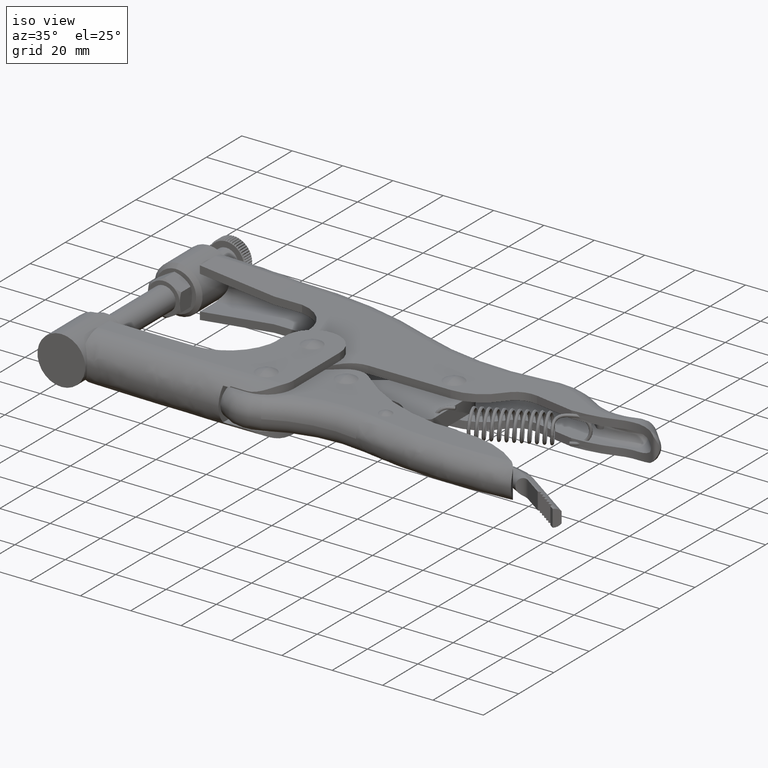
[diagram: clean part render]
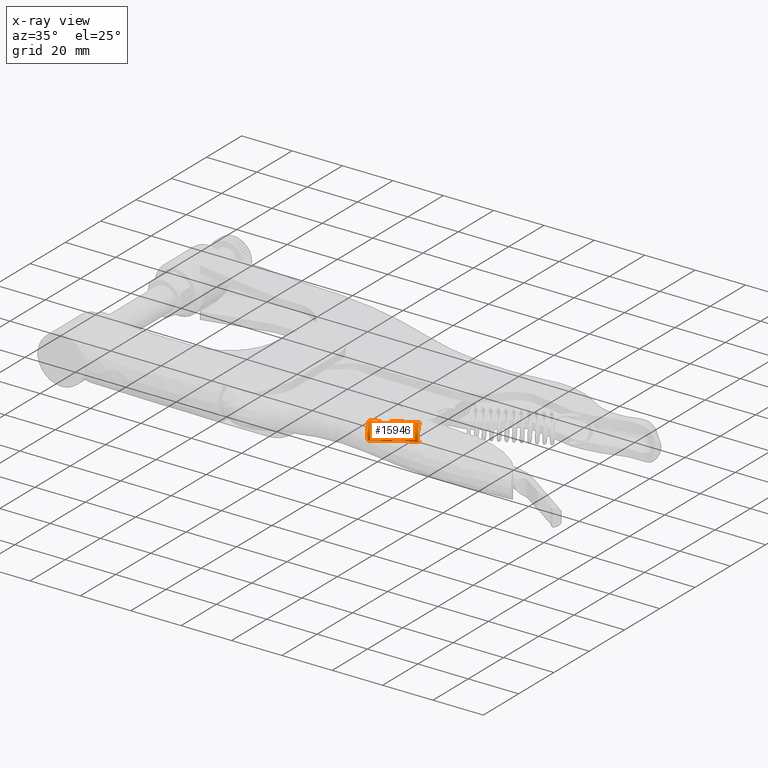
[diagram: x-ray — body ghosted, one internal face saturated and labeled with its STEP entity id]
A machine part, iso view, then the same camera in x-ray: the body is ghosted and one INTERNAL B-rep face — a face not visible from any outside direction — is saturated and labeled: STEP entity #15946.
In plain terms, the highlighted face is a freeform B-spline surface patch.
Its self-contained STEP definition (entity closure, byte-faithful):
#2 = VECTOR ( 'NONE', #17696, 1000.000000000000000 ) ;
#391 = ORIENTED_EDGE ( 'NONE', *, *, #11643, .F. ) ;
#448 = VERTEX_POINT ( 'NONE', #28071 ) ;
#676 = CARTESIAN_POINT ( 'NONE',  ( 44.06726535546203400, -32.78890927556452100, -3.399999999999998100 ) ) ;
#895 = VERTEX_POINT ( 'NONE', #27309 ) ;
#990 = CARTESIAN_POINT ( 'NONE',  ( 45.61718484976257300, -25.69403677163135700, 3.098255744760664700 ) ) ;
#1134 = CARTESIAN_POINT ( 'NONE',  ( 55.57010816931430200, -18.33612750716227100, 3.399999999999998600 ) ) ;
#1231 = CARTESIAN_POINT ( 'NONE',  ( 45.61791360163985600, -25.69428381229216300, -3.097978085943051200 ) ) ;
#1258 = ORIENTED_EDGE ( 'NONE', *, *, #9082, .T. ) ;
#1335 = CARTESIAN_POINT ( 'NONE',  ( 47.64531181743538500, -24.64726094941002200, -3.047005688041712900 ) ) ;
#1570 = CARTESIAN_POINT ( 'NONE',  ( 47.66681671758975400, -24.08746019915241700, -3.239200085711781500 ) ) ;
#1610 = VERTEX_POINT ( 'NONE', #17940 ) ;
#2367 = CARTESIAN_POINT ( 'NONE',  ( 47.17917156307391500, -23.17473498567709500, 3.399999999999999000 ) ) ;
#3047 = CARTESIAN_POINT ( 'NONE',  ( 44.06726535546189900, -32.78890927556423700, 3.400000000000623900 ) ) ;
#3247 = CARTESIAN_POINT ( 'NONE',  ( 47.64558947808738100, -24.64617610584436500, 3.047412845196806300 ) ) ;
#3348 = CARTESIAN_POINT ( 'NONE',  ( 45.15840697478898100, -25.40692877180829300, 3.275681344832299200 ) ) ;
#3607 = CARTESIAN_POINT ( 'NONE',  ( 46.14296472629641200, -25.80180386569308500, -2.907459857115975800 ) ) ;
#3707 = CARTESIAN_POINT ( 'NONE',  ( 47.67714990750867800, -24.29095745534076300, -3.173433522800128700 ) ) ;
#3953 = CARTESIAN_POINT ( 'NONE',  ( 47.59338504615602300, -23.78562611743962000, -3.320451736665198900 ) ) ;
#4299 = VECTOR ( 'NONE', #7828, 1000.000000000000000 ) ;
#4366 = VERTEX_POINT ( 'NONE', #24058 ) ;
#4541 = CARTESIAN_POINT ( 'NONE',  ( 55.57010816931430200, -18.33612750716227100, -3.400000000000000400 ) ) ;
#4740 = CARTESIAN_POINT ( 'NONE',  ( 47.45530232782724800, -23.49877472608380600, 3.375600863510891200 ) ) ;
#5408 = CARTESIAN_POINT ( 'NONE',  ( 41.19671371462941800, -26.62450068452142900, 3.399999999999999900 ) ) ;
#5593 = B_SPLINE_CURVE_WITH_KNOTS ( 'NONE', 3,
 ( #2367, #30731, #14160, #4740, #21309, #7107, #23680, #9481 ),
 .UNSPECIFIED., .F., .F.,
 ( 4, 2, 2, 4 ),
 ( 0.008275824479822757200, 0.008594184501867472400, 0.008912544523912189300, 0.009549264568001611000 ),
 .UNSPECIFIED. ) ;
#5613 = CARTESIAN_POINT ( 'NONE',  ( 47.42861461961787500, -25.13876443298906700, 2.864510002804273400 ) ) ;
#5616 = EDGE_CURVE ( 'NONE', #17488, #9018, #25920, .T. ) ;
#5721 = CARTESIAN_POINT ( 'NONE',  ( 44.82216106768810700, -24.96144776679170000, 3.385033806121104500 ) ) ;
#5850 = CARTESIAN_POINT ( 'NONE',  ( 55.57010816931430200, -18.33612750716227100, 3.399999999999998600 ) ) ;
#5861 = CARTESIAN_POINT ( 'NONE',  ( 44.70913606373452600, -24.59907326877365500, -3.399999999999999500 ) ) ;
#5957 = CARTESIAN_POINT ( 'NONE',  ( 46.50797038692594000, -25.75699916181383400, -2.813646573213274000 ) ) ;
#6072 = EDGE_CURVE ( 'NONE', #9018, #23733, #5593, .T. ) ;
#6300 = CARTESIAN_POINT ( 'NONE',  ( 47.45686843786288000, -23.50123268886106200, -3.375253990886856000 ) ) ;
#6709 = CARTESIAN_POINT ( 'NONE',  ( 41.19671371462954600, -26.62450068452171700, 2.802875531023441700E-016 ) ) ;
#6933 = ORIENTED_EDGE ( 'NONE', *, *, #30527, .T. ) ;
#7107 = CARTESIAN_POINT ( 'NONE',  ( 47.63554985191826300, -23.88143281168854400, 3.300715945900514600 ) ) ;
#7828 = DIRECTION ( 'NONE',  ( -0.8662891316051880600, -0.4995429315511623600, 6.564292506687230200E-017 ) ) ;
#7956 = ORIENTED_EDGE ( 'NONE', *, *, #25918, .T. ) ;
#7995 = CARTESIAN_POINT ( 'NONE',  ( 47.17611332930567200, -25.41387102135563600, 2.788341233521864900 ) ) ;
#8005 = VECTOR ( 'NONE', #21204, 1000.000000000000000 ) ;
#8089 = CARTESIAN_POINT ( 'NONE',  ( 44.70913606373452600, -24.59907326877366200, 3.399999999999999500 ) ) ;
#8237 = CARTESIAN_POINT ( 'NONE',  ( 44.74779553472882300, -24.78326582280168100, -3.399999999999998600 ) ) ;
#8267 = VERTEX_POINT ( 'NONE', #23823 ) ;
#8327 =( BOUNDED_SURFACE ( )  B_SPLINE_SURFACE ( 3, 1, ( 
 ( #21873, #10059 ),
 ( #14834, #676 ),
 ( #17229, #3047 ),
 ( #19605, #5408 ) ),
 .UNSPECIFIED., .F., .F., .F. ) 
 B_SPLINE_SURFACE_WITH_KNOTS ( ( 4, 4 ),
 ( 2, 2 ),
 ( 0.0000000000000000000, 1.000000000000000000 ),
 ( 0.0000000000000000000, 1.000000000000000000 ),
 .UNSPECIFIED. ) 
 GEOMETRIC_REPRESENTATION_ITEM ( )  RATIONAL_B_SPLINE_SURFACE ( (
 ( 1.000000000000000000, 1.000000000000000000),
 ( 0.3333333333333027300, 0.3333333333333027300),
 ( 0.3333333333333027300, 0.3333333333333027300),
 ( 1.000000000000000000, 1.000000000000000000) ) ) 
 REPRESENTATION_ITEM ( '' )  SURFACE ( )  );
#8347 = CARTESIAN_POINT ( 'NONE',  ( 46.77658012352093700, -25.66920139032565400, -2.773039902989876500 ) ) ;
#8685 = CARTESIAN_POINT ( 'NONE',  ( 47.25961792498749500, -23.24695087358605900, -3.399999999999999500 ) ) ;
#9018 = VERTEX_POINT ( 'NONE', #13969 ) ;
#9070 = EDGE_CURVE ( 'NONE', #8267, #895, #14330, .T. ) ;
#9082 = EDGE_CURVE ( 'NONE', #448, #895, #23446, .T. ) ;
#9094 = DIRECTION ( 'NONE',  ( 0.0000000000000000000, 0.0000000000000000000, -1.000000000000000000 ) ) ;
#9398 = ORIENTED_EDGE ( 'NONE', *, *, #15927, .T. ) ;
#9481 = CARTESIAN_POINT ( 'NONE',  ( 47.67714990750867800, -24.29095745534074500, 3.173433522800154400 ) ) ;
#9510 = ORIENTED_EDGE ( 'NONE', *, *, #18217, .T. ) ;
#10059 = CARTESIAN_POINT ( 'NONE',  ( 41.19671371462955300, -26.62450068452171300, -3.399999999999999000 ) ) ;
#10369 = CARTESIAN_POINT ( 'NONE',  ( 46.94644208759918800, -25.58212402886102400, 2.766307430147606700 ) ) ;
#10625 = CARTESIAN_POINT ( 'NONE',  ( 44.97689005307631000, -25.19543405000515400, -3.338076273092112500 ) ) ;
#10634 = LINE ( 'NONE', #28821, #23264 ) ;
#10719 = CARTESIAN_POINT ( 'NONE',  ( 47.18086231402322300, -25.42092711426720100, -2.783254127420584200 ) ) ;
#11643 = EDGE_CURVE ( 'NONE', #27974, #4366, #17631, .T. ) ;
#11951 = FACE_OUTER_BOUND ( 'NONE', #25511, .T. ) ;
#12019 = ORIENTED_EDGE ( 'NONE', *, *, #18801, .F. ) ;
#12225 = DIRECTION ( 'NONE',  ( -0.8662891316051880600, -0.4995429315511623600, 6.564292506687230200E-017 ) ) ;
#12454 = DIRECTION ( 'NONE',  ( -0.9065306751532712400, -0.4221399471812093400, 6.280311641998685200E-017 ) ) ;
#12767 = CARTESIAN_POINT ( 'NONE',  ( 46.51005489514999900, -25.76499034731699900, 2.809510908957205000 ) ) ;
#12788 = ORIENTED_EDGE ( 'NONE', *, *, #9070, .F. ) ;
#13010 = CARTESIAN_POINT ( 'NONE',  ( 45.16373533667611200, -25.40064649906160500, -3.273049792243951700 ) ) ;
#13115 = CARTESIAN_POINT ( 'NONE',  ( 47.41898289229877200, -25.13717014611388100, -2.868027958598547300 ) ) ;
#13237 = B_SPLINE_CURVE_WITH_KNOTS ( 'NONE', 3,
 ( #5861, #8237, #24844, #10625, #27224, #13010, #29595, #15395, #1231, #17787, #3607, #20171, #5957, #22547, #8347, #24941, #10719, #27324, #13115, #29683, #15492, #1335, #17891, #3707 ),
 .UNSPECIFIED., .F., .F.,
 ( 4, 2, 2, 2, 2, 2, 2, 2, 2, 2, 2, 4 ),
 ( 0.003762194174914350300, 0.004327245422867221700, 0.004609771046843656900, 0.004892296670820092200, 0.005457347918772968700, 0.006022399166725846100, 0.006304924790702295300, 0.006587450414678744400, 0.007152501662631637400, 0.007435027286608083100, 0.007717552910584530400, 0.008282604158537414800 ),
 .UNSPECIFIED. ) ;
#13969 = CARTESIAN_POINT ( 'NONE',  ( 47.17917156307391500, -23.17473498567709500, 3.399999999999999000 ) ) ;
#14160 = CARTESIAN_POINT ( 'NONE',  ( 47.33124843764960600, -23.32696385119925300, 3.395255838776981300 ) ) ;
#14330 = LINE ( 'NONE', #4541, #8005 ) ;
#14834 = CARTESIAN_POINT ( 'NONE',  ( 58.44065981014678400, -24.50053609820507500, -3.399999999999999500 ) ) ;
#15045 = CARTESIAN_POINT ( 'NONE',  ( 47.67714990750867800, -24.29095745534074500, 3.173433522800154400 ) ) ;
#15138 = CARTESIAN_POINT ( 'NONE',  ( 45.96390638930045500, -25.78652411572112900, 2.969627270081825400 ) ) ;
#15323 = CARTESIAN_POINT ( 'NONE',  ( 47.67714990750867800, -24.29095745534074500, 3.173433522800154400 ) ) ;
#15395 = CARTESIAN_POINT ( 'NONE',  ( 45.45522365286281300, -25.61835299867969300, -3.162592587867136800 ) ) ;
#15492 = CARTESIAN_POINT ( 'NONE',  ( 47.55072756967860700, -24.90038119905214500, -2.952718726306501600 ) ) ;
#15927 = EDGE_CURVE ( 'NONE', #8267, #17488, #24563, .T. ) ;
#15946 = ADVANCED_FACE ( 'NONE', ( #11951 ), #8327, .T. ) ;
#17229 = CARTESIAN_POINT ( 'NONE',  ( 58.44065981014665600, -24.50053609820479700, 3.400000000000622500 ) ) ;
#17488 = VERTEX_POINT ( 'NONE', #5850 ) ;
#17533 = CARTESIAN_POINT ( 'NONE',  ( 45.45535068460840500, -25.61844946057663800, 3.162544530426271800 ) ) ;
#17540 = ORIENTED_EDGE ( 'NONE', *, *, #5616, .T. ) ;
#17631 = LINE ( 'NONE', #26807, #4299 ) ;
#17696 = DIRECTION ( 'NONE',  ( -0.8662891316051880600, -0.4995429315511623600, 6.564292506687230200E-017 ) ) ;
#17787 = CARTESIAN_POINT ( 'NONE',  ( 45.96400202221021700, -25.78649685265167700, -2.969599111958819200 ) ) ;
#17891 = CARTESIAN_POINT ( 'NONE',  ( 47.67714990750867800, -24.47184832483984700, -3.112941257993788700 ) ) ;
#17940 = CARTESIAN_POINT ( 'NONE',  ( 41.19671371462954600, -26.62450068452171700, 3.399999999999999900 ) ) ;
#18130 = CARTESIAN_POINT ( 'NONE',  ( 47.62525588062546700, -23.88659693679729300, -3.295476482601005200 ) ) ;
#18217 = EDGE_CURVE ( 'NONE', #23733, #21332, #18252, .T. ) ;
#18252 = B_SPLINE_CURVE_WITH_KNOTS ( 'NONE', 3,
 ( #15045, #29244, #3247, #19818, #5613, #22189, #7995, #24587, #10369, #26968, #12767, #29349, #15138, #990, #17533, #3348, #19917, #5721, #22296, #8089 ),
 .UNSPECIFIED., .F., .F.,
 ( 4, 2, 2, 2, 2, 2, 2, 2, 2, 4 ),
 ( 0.0000000000000000000, 0.0005651028221361338500, 0.001130205644272267700, 0.001412757055340337900, 0.001695308466408408600, 0.002260411288544567900, 0.002825514110680727100, 0.003390616932816887000, 0.003955719754953046200, 0.004520822577089205300 ),
 .UNSPECIFIED. ) ;
#18801 = EDGE_CURVE ( 'NONE', #4366, #1610, #30079, .T. ) ;
#19605 = CARTESIAN_POINT ( 'NONE',  ( 55.57010816931417500, -18.33612750716198600, 3.399999999999998600 ) ) ;
#19818 = CARTESIAN_POINT ( 'NONE',  ( 47.51961622248470000, -24.98397928419003800, 2.921575511485235800 ) ) ;
#19917 = CARTESIAN_POINT ( 'NONE',  ( 45.03025647153826600, -25.27593839947922300, 3.321858846855211000 ) ) ;
#20171 = CARTESIAN_POINT ( 'NONE',  ( 46.41747918600503900, -25.77443250180080300, -2.834143682006366100 ) ) ;
#20517 = CARTESIAN_POINT ( 'NONE',  ( 47.50892235764461400, -23.59277132681679800, -3.360315031565102500 ) ) ;
#21204 = DIRECTION ( 'NONE',  ( -0.8662891316051880600, -0.4995429315511623600, 6.564292506687230200E-017 ) ) ;
#21309 = CARTESIAN_POINT ( 'NONE',  ( 47.50814883355491200, -23.59124175109590000, 3.360597095771470600 ) ) ;
#21332 = VERTEX_POINT ( 'NONE', #23457 ) ;
#21873 = CARTESIAN_POINT ( 'NONE',  ( 55.57010816931430200, -18.33612750716227100, -3.400000000000000400 ) ) ;
#22189 = CARTESIAN_POINT ( 'NONE',  ( 47.24385696098978800, -25.34966950840552600, 2.803656625949208200 ) ) ;
#22296 = CARTESIAN_POINT ( 'NONE',  ( 44.74827881701904900, -24.78556841507890200, 3.400000000000000400 ) ) ;
#22547 = CARTESIAN_POINT ( 'NONE',  ( 46.68724994782619600, -25.70464710430492500, -2.783023384023068900 ) ) ;
#22887 = CARTESIAN_POINT ( 'NONE',  ( 47.33243774858672000, -23.32832838452451400, -3.395163985180060800 ) ) ;
#23264 = VECTOR ( 'NONE', #12225, 1000.000000000000000 ) ;
#23304 = DIRECTION ( 'NONE',  ( -0.9065306751532712400, -0.4221399471812093400, 6.280311641998685200E-017 ) ) ;
#23446 = B_SPLINE_CURVE_WITH_KNOTS ( 'NONE', 3,
 ( #23593, #25961, #1570, #18130, #3953, #20517, #6300, #22887, #8685, #25278 ),
 .UNSPECIFIED., .F., .F.,
 ( 4, 2, 2, 2, 4 ),
 ( 0.008282604158537414800, 0.008602030550547047300, 0.008921456942556679800, 0.009240883334566310500, 0.009560309726575943000 ),
 .UNSPECIFIED. ) ;
#23457 = CARTESIAN_POINT ( 'NONE',  ( 44.70913606373452600, -24.59907326877366200, 3.399999999999999500 ) ) ;
#23593 = CARTESIAN_POINT ( 'NONE',  ( 47.67714990750867800, -24.29095745534076300, -3.173433522800128700 ) ) ;
#23680 = CARTESIAN_POINT ( 'NONE',  ( 47.67714990750869200, -24.08678968521794100, 3.241709886606623800 ) ) ;
#23733 = VERTEX_POINT ( 'NONE', #15323 ) ;
#23823 = CARTESIAN_POINT ( 'NONE',  ( 55.57010816931430200, -18.33612750716227100, -3.400000000000000400 ) ) ;
#24058 = CARTESIAN_POINT ( 'NONE',  ( 41.19671371462954600, -26.62450068452171700, -3.399999999999999000 ) ) ;
#24563 = CIRCLE ( 'NONE', #29343, 3.399999999999999500 ) ;
#24587 = CARTESIAN_POINT ( 'NONE',  ( 47.02787563609467700, -25.52996049389656000, 2.769578403660454000 ) ) ;
#24844 = CARTESIAN_POINT ( 'NONE',  ( 44.82266839755062900, -24.96191673354792300, -3.384847242309760000 ) ) ;
#24941 = CARTESIAN_POINT ( 'NONE',  ( 47.02814720373854100, -25.54047548825258900, -2.762923067478500400 ) ) ;
#25278 = CARTESIAN_POINT ( 'NONE',  ( 47.17917156307302700, -23.17473498567796500, -3.399999999999999500 ) ) ;
#25511 = EDGE_LOOP ( 'NONE', ( #9398, #17540, #26731, #9510, #7956, #12019, #391, #6933, #1258, #12788 ) ) ;
#25918 = EDGE_CURVE ( 'NONE', #21332, #1610, #10634, .T. ) ;
#25920 = LINE ( 'NONE', #1134, #2 ) ;
#25961 = CARTESIAN_POINT ( 'NONE',  ( 47.67714990750867100, -24.18869891153449500, -3.207630112864452400 ) ) ;
#26218 = CARTESIAN_POINT ( 'NONE',  ( 44.70913606373452600, -24.59907326877365500, -3.399999999999999500 ) ) ;
#26648 = CARTESIAN_POINT ( 'NONE',  ( 55.57010816931430200, -18.33612750716227100, -8.088541903675207800E-016 ) ) ;
#26731 = ORIENTED_EDGE ( 'NONE', *, *, #6072, .T. ) ;
#26807 = CARTESIAN_POINT ( 'NONE',  ( 55.57010816931430200, -18.33612750716227100, -3.400000000000000400 ) ) ;
#26968 = CARTESIAN_POINT ( 'NONE',  ( 46.69437850913956800, -25.71157735149708000, 2.776151972883170100 ) ) ;
#27224 = CARTESIAN_POINT ( 'NONE',  ( 45.03603852651077900, -25.26885503805935300, -3.318347151089291500 ) ) ;
#27309 = CARTESIAN_POINT ( 'NONE',  ( 47.17917156307302700, -23.17473498567796500, -3.399999999999999500 ) ) ;
#27324 = CARTESIAN_POINT ( 'NONE',  ( 47.36431841915329200, -25.21247708683526100, -2.843164660067120300 ) ) ;
#27974 = VERTEX_POINT ( 'NONE', #26218 ) ;
#28071 = CARTESIAN_POINT ( 'NONE',  ( 47.67714990750867800, -24.29095745534076300, -3.173433522800128700 ) ) ;
#28209 = AXIS2_PLACEMENT_3D ( 'NONE', #6709, #23304, #9094 ) ;
#28821 = CARTESIAN_POINT ( 'NONE',  ( 55.57010816931430200, -18.33612750716227100, 3.399999999999998600 ) ) ;
#29042 = DIRECTION ( 'NONE',  ( 0.0000000000000000000, 0.0000000000000000000, -1.000000000000000000 ) ) ;
#29244 = CARTESIAN_POINT ( 'NONE',  ( 47.67714990750868500, -24.47216077092136600, 3.112836771951189400 ) ) ;
#29343 = AXIS2_PLACEMENT_3D ( 'NONE', #26648, #12454, #29042 ) ;
#29349 = CARTESIAN_POINT ( 'NONE',  ( 46.14530660850281400, -25.80177998023663500, 2.906743292469541100 ) ) ;
#29595 = CARTESIAN_POINT ( 'NONE',  ( 45.23275538266614100, -25.45989205267853000, -3.247354456752585600 ) ) ;
#29683 = CARTESIAN_POINT ( 'NONE',  ( 47.51189054439828400, -24.98138667863137400, -2.922741028971458400 ) ) ;
#30079 = CIRCLE ( 'NONE', #28209, 3.399999999999999500 ) ;
#30527 = EDGE_CURVE ( 'NONE', #27974, #448, #13237, .T. ) ;
#30731 = CARTESIAN_POINT ( 'NONE',  ( 47.25853448357666800, -23.24597827915639700, 3.399999999999994600 ) ) ;